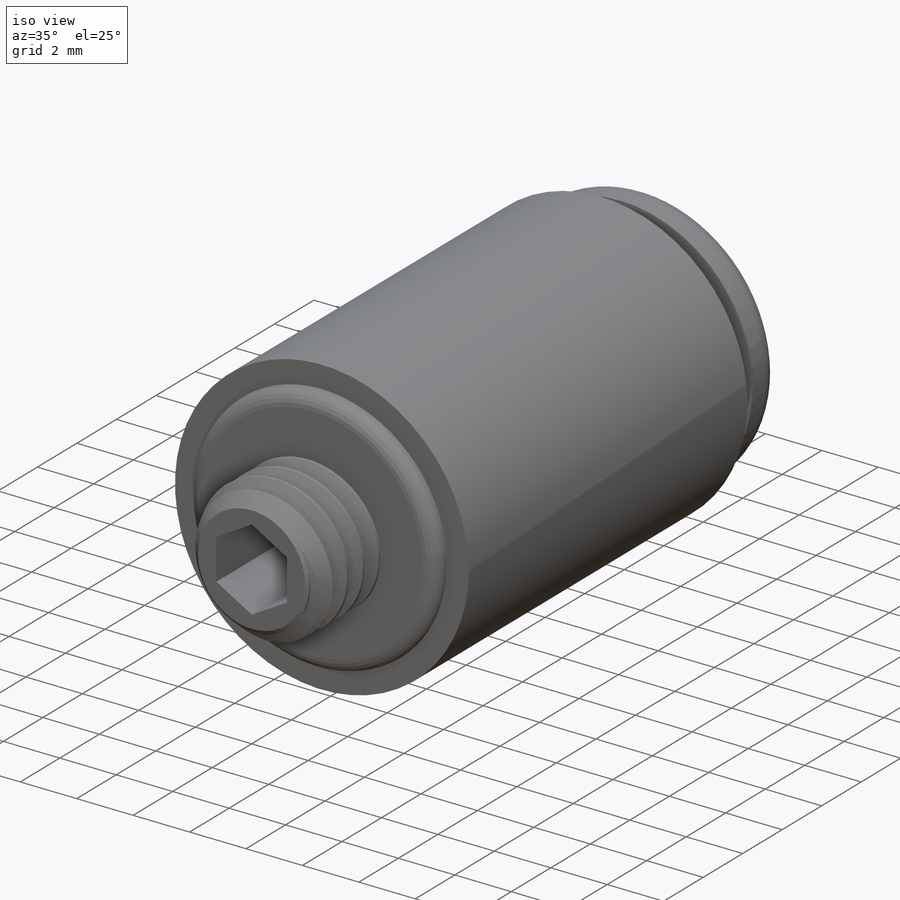
[diagram: iso view]
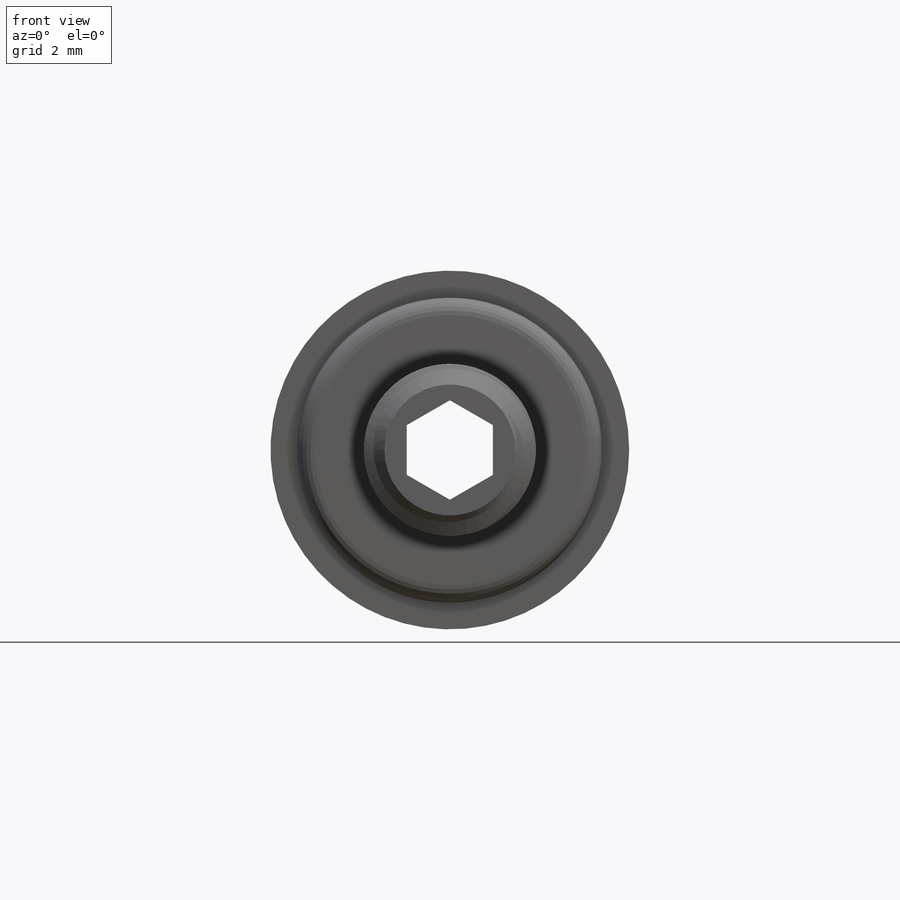
[diagram: front view]
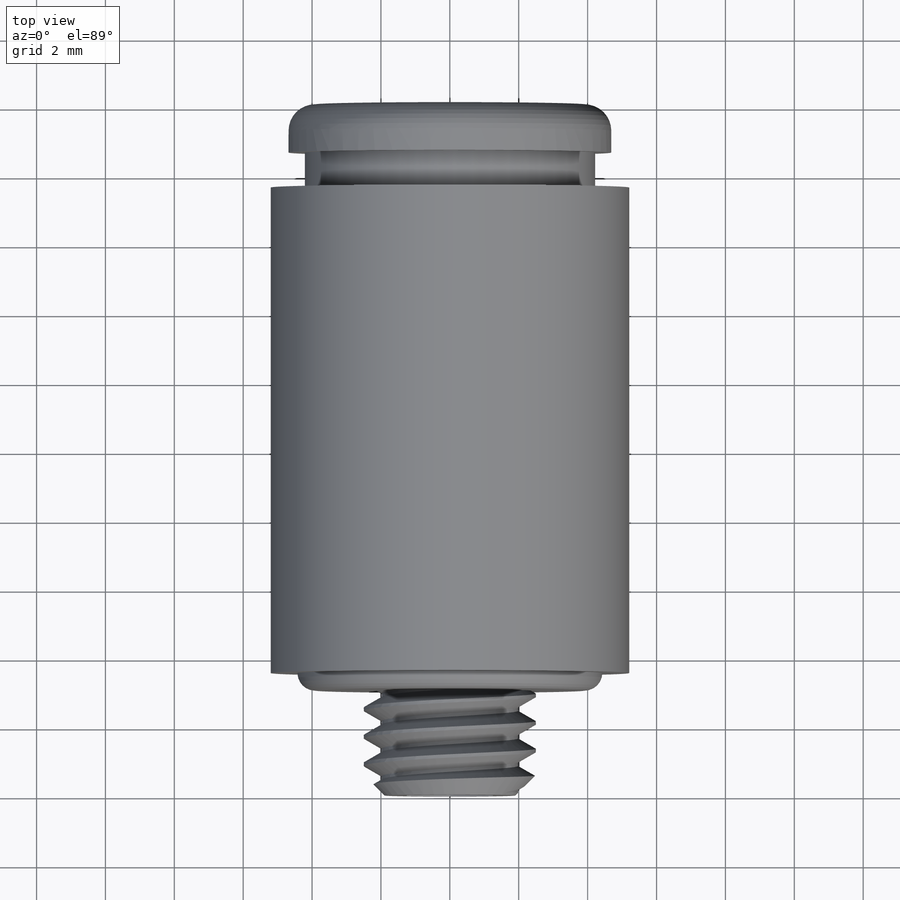
[diagram: top view]
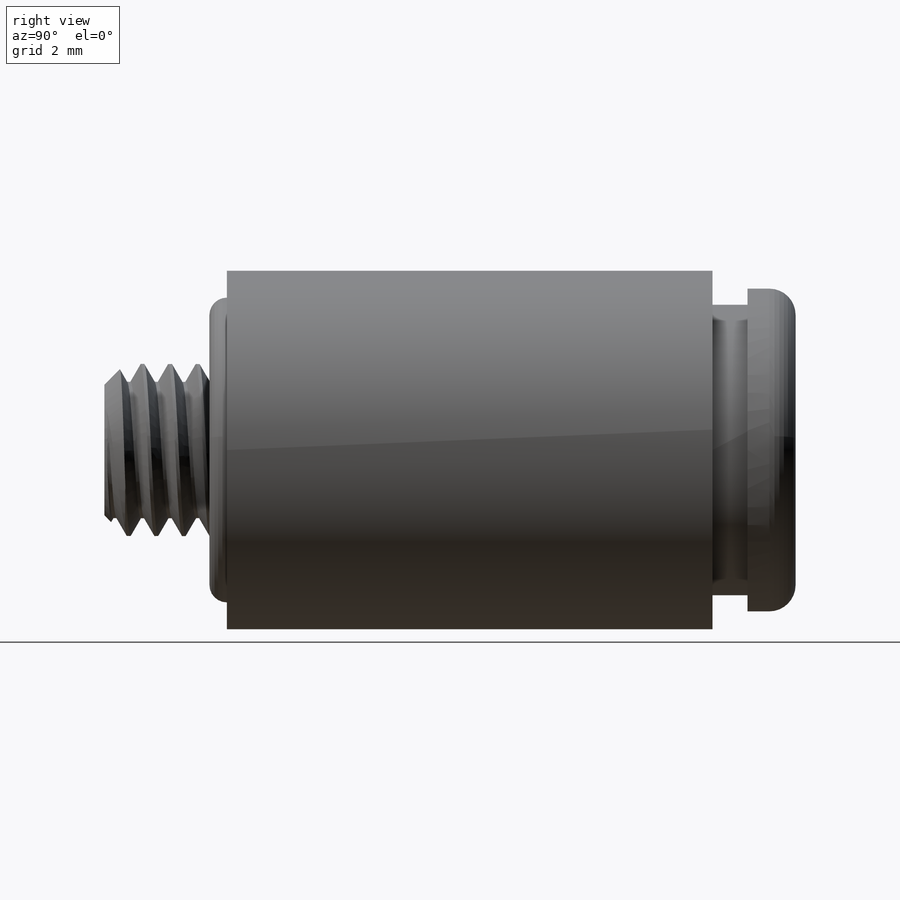
[diagram: right view]
SOLIDWORKS PART (.sldprt)
format: sldprt  version: not decoded by parser v0  size: 566,272 bytes
history: native  units: mm
features: sketch x6, revolve x3, material x1, helix x1, chamfer x1, sweep x1, cut_extrude x1 (+14 scaffold rows collapsed)
feature tree (28):
  scaffold x14  (default folders/planes/origin — collapsed)
  material  "Material <not specified>"
  sketch  "Sketch8"  dims[c1.D4=0.762mm c1.H=9.4996mm c1.tube od=6.35mm c1.D1=1.397mm c1.D2=1.016mm c1.D3=~8.43534mm c1.D5=10.414mm c1.D6=9.3726mm c2.H=~9.482631mm c2.D8=~9.502527mm c2.D9=~8.742261mm c3.D8=16.51mm c3.D9=3.556mm c3.D10=5.0mm]
  revolve  "Revolve1"  Angle=360deg
  sketch  "Sketch9"  dims[D1=3.5mm]
  revolve  "Revolve2"  Angle=360deg
  sketch  "Sketch10"  dims[D1=0.0mm]
  helix  "Helix/Spiral1"  Pitch=4.356mm
  sketch  "Sketch11"  dims[c1.D1=0.1mm c1.D2=0.4mm c1.D3=~1.051777mm c2.D3=60.0deg]
  chamfer  "Chamfer1"  Distance=0.6mm Angle=45deg
  sweep  "Cut-Sweep2"
  sketch  "Sketch14"  dims[c1.D3=~0.50965mm c1.D1=0.508mm c1.D2=8.8519mm c2.D3=~3.91795mm]
  revolve  "Revolve3"  Angle=360deg
  sketch  "Sketch12"  dims[D1=2.5mm]
  cut_extrude  "Cut-Extrude1"  [1 undecoded]
decode coverage: 11 of 13 modeling features carry decoded parameters
note: ~ marks probable driven/reference dimensions
note: 1 parameter value undecoded
note: suppression state not decoded; provenance and decode notes live in map.json
